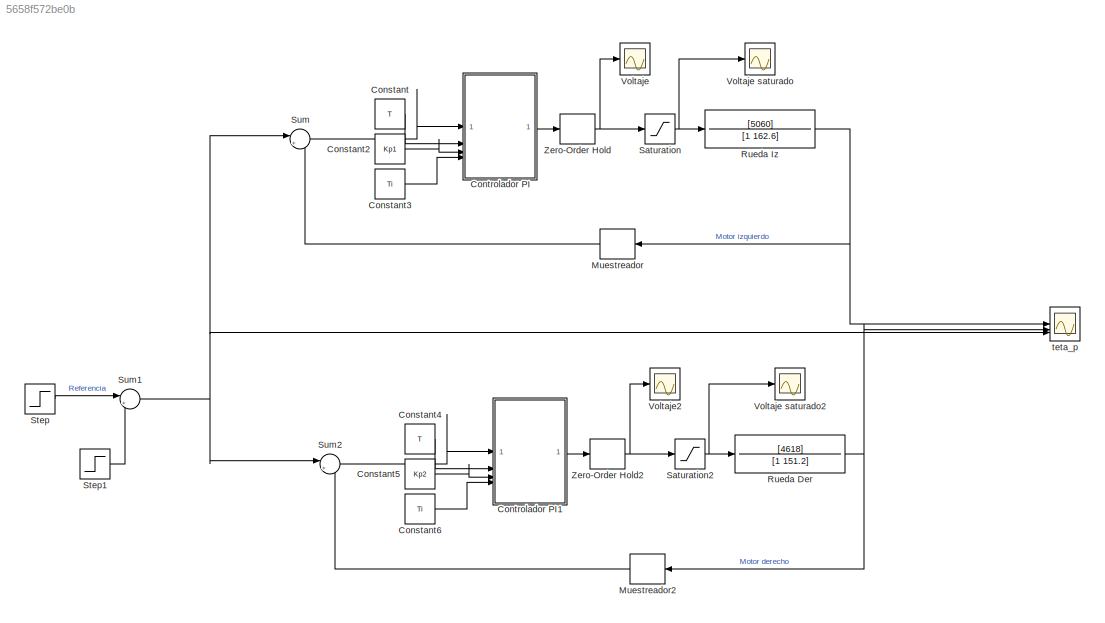
MODEL slx_5658f572be0b
KIND model
CONFIG AbsTol = auto
CONFIG EnableMultiTasking = off
CONFIG FixedStep = auto
CONFIG MaxStep = auto
CONFIG MinStep = auto
CONFIG RelTol = 1e-3
CONFIG SampleTimeConstraint = Unconstrained
CONFIG SolverName = VariableStepAuto
CONFIG StartTime = 0.0
CONFIG StopTime = 5
BLOCK [Constant] Constant
  Value = T
BLOCK [Constant] Constant2
  Value = Kp1
BLOCK [Constant] Constant3
  Value = Ti
BLOCK [Constant] Constant4
  Value = T
BLOCK [Constant] Constant5
  Value = Kp2
BLOCK [Constant] Constant6
  Value = Ti
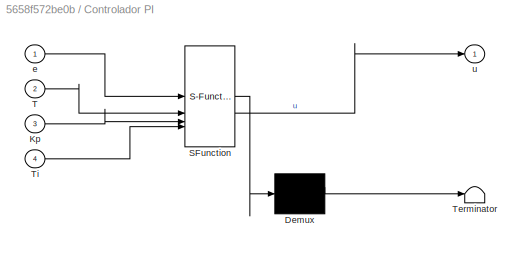
BLOCK [SubSystem] Controlador PI
  ErrorFcn = Stateflow.Translate.translate
  PermitHierarchicalResolution = ExplicitOnly
  SFBlockType = MATLAB Function
  SystemSampleTime = T
  TreatAsAtomicUnit = on
BLOCK [Demux] Controlador PI/ Demux 
  Outputs = 1
BLOCK [S-Function] Controlador PI/ SFunction 
  EnableBusSupport = on
  FunctionName = sf_sfun
  PortCounts = [4 2]
  SFcnIsStateOwnerBlock = off
  SFunctionDeploymentMode = off
  Tag = Stateflow S-Function 2
BLOCK [Terminator] Controlador PI/ Terminator 
BLOCK [Inport] Controlador PI/Kp
  Port = 3
BLOCK [Inport] Controlador PI/T
  Port = 2
BLOCK [Inport] Controlador PI/Ti
  Port = 4
BLOCK [Inport] Controlador PI/e
BLOCK [Outport] Controlador PI/u
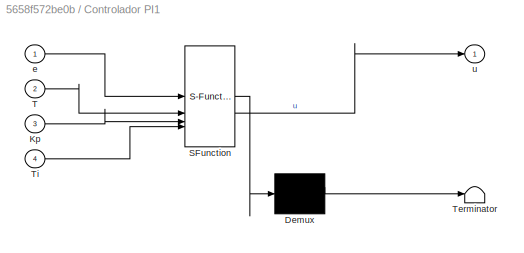
BLOCK [SubSystem] Controlador PI1
  ErrorFcn = Stateflow.Translate.translate
  PermitHierarchicalResolution = ExplicitOnly
  SFBlockType = MATLAB Function
  SystemSampleTime = T
  TreatAsAtomicUnit = on
BLOCK [Demux] Controlador PI1/ Demux 
  Outputs = 1
BLOCK [S-Function] Controlador PI1/ SFunction 
  EnableBusSupport = on
  FunctionName = sf_sfun
  PortCounts = [4 2]
  SFcnIsStateOwnerBlock = off
  SFunctionDeploymentMode = off
  Tag = Stateflow S-Function 3
BLOCK [Terminator] Controlador PI1/ Terminator 
BLOCK [Inport] Controlador PI1/Kp
  Port = 3
BLOCK [Inport] Controlador PI1/T
  Port = 2
BLOCK [Inport] Controlador PI1/Ti
  Port = 4
BLOCK [Inport] Controlador PI1/e
BLOCK [Outport] Controlador PI1/u
BLOCK [ZeroOrderHold] Muestreador
  SampleTime = T
BLOCK [ZeroOrderHold] Muestreador2
  SampleTime = T
BLOCK [TransferFcn] Rueda Der
  Denominator = [1 151.2]
  Numerator = [4618]
BLOCK [TransferFcn] Rueda Iz
  Denominator = [1 162.6]
  Numerator = [5060]
BLOCK [Saturate] Saturation
  LowerLimit = -9
  UpperLimit = 9
BLOCK [Saturate] Saturation2
  LowerLimit = -9
  UpperLimit = 9
BLOCK [Step] Step
  After = 275
  SampleTime = 0
  Time = 0
BLOCK [Step] Step1
  After = 275
  Commented = on
  SampleTime = 0
  Time = 5
BLOCK [Sum] Sum
  Inputs = |+-
BLOCK [Sum] Sum1
  Inputs = |+-
BLOCK [Sum] Sum2
  Inputs = |+-
BLOCK [Scope] Voltaje
  Floating = off
  NumInputPorts = 1
  ScopeSpecificationString = Simulink.scopes.TimeScopeBlockCfg('CurrentConfiguration', extmgr.ConfigurationSet(extmgr.Configuration('Core','General UI',true),extmgr.Configuration('Core','Source UI',true),extmgr.Configuration('Sources','WiredSimulink',true,'DataLoggingVariableName','ScopeData1'),extmgr.Configuration('Visuals','Time Domain',true,'SerializedDisplays',{struct('MinYLimReal','-0.6487','MaxYLimReal','9.77224','YLabe...<+1625ch>
BLOCK [Scope] Voltaje saturado
  Floating = off
  NumInputPorts = 1
  ScopeSpecificationString = Simulink.scopes.TimeScopeBlockCfg('CurrentConfiguration', extmgr.ConfigurationSet(extmgr.Configuration('Core','General UI',true),extmgr.Configuration('Core','Source UI',true),extmgr.Configuration('Sources','WiredSimulink',true,'DataLoggingVariableName','ScopeData2'),extmgr.Configuration('Visuals','Time Domain',true,'SerializedDisplays',{struct('MinYLimReal','-11.25','MaxYLimReal','11.25','YLabelRe...<+1475ch>
BLOCK [Scope] Voltaje saturado2
  Floating = off
  NumInputPorts = 1
  ScopeSpecificationString = Simulink.scopes.TimeScopeBlockCfg('CurrentConfiguration', extmgr.ConfigurationSet(extmgr.Configuration('Core','General UI',true),extmgr.Configuration('Core','Source UI',true),extmgr.Configuration('Sources','WiredSimulink',true,'DataLoggingVariableName','ScopeData1'),extmgr.Configuration('Visuals','Time Domain',true,'SerializedDisplays',{struct('MinYLimReal','2.67548','MaxYLimReal','9.70272','YLabe...<+1512ch>
BLOCK [Scope] Voltaje2
  Floating = off
  NumInputPorts = 1
  ScopeSpecificationString = Simulink.scopes.TimeScopeBlockCfg('CurrentConfiguration', extmgr.ConfigurationSet(extmgr.Configuration('Core','General UI',true),extmgr.Configuration('Core','Source UI',true),extmgr.Configuration('Sources','WiredSimulink',true,'DataLoggingVariableName','ScopeData2'),extmgr.Configuration('Visuals','Time Domain',true,'SerializedDisplays',{struct('MinYLimReal','2.66362','MaxYLimReal','9.80947','YLabe...<+1537ch>
BLOCK [ZeroOrderHold] Zero-Order Hold
  SampleTime = T
BLOCK [ZeroOrderHold] Zero-Order Hold2
  SampleTime = T
BLOCK [Scope] teta_p
  Floating = off
  NumInputPorts = 3
  ScopeSpecificationString = Simulink.scopes.TimeScopeBlockCfg('CurrentConfiguration', extmgr.ConfigurationSet(extmgr.Configuration('Core','General UI',true,'FigureColor',[1 1 1]),extmgr.Configuration('Core','Source UI',true),extmgr.Configuration('Sources','WiredSimulink',true),extmgr.Configuration('Visuals','Time Domain',true,'SerializedDisplays',{struct('MinYLimReal','-34.03821','MaxYLimReal','306.34391','YLabelReal','Veloc...<+2091ch>
LINE Constant2:1 -> Controlador PI:3
LINE Constant3:1 -> Controlador PI:4
LINE Constant4:1 -> Controlador PI1:2
LINE Constant5:1 -> Controlador PI1:3
LINE Constant6:1 -> Controlador PI1:4
LINE Constant:1 -> Controlador PI:2
LINE Controlador PI1:1 -> Zero-Order Hold2:1
LINE Controlador PI:1 -> Zero-Order Hold:1
LINE Muestreador2:1 -> Sum2:2
LINE Muestreador:1 -> Sum:2
NET Rueda Der:1 -> Muestreador2:1, teta_p:2
NET Rueda Iz:1 -> Muestreador:1, teta_p:1
NET Saturation2:1 -> Rueda Der:1, Voltaje saturado2:1
NET Saturation:1 -> Rueda Iz:1, Voltaje saturado:1
LINE Step1:1 -> Sum1:2
LINE Step:1 -> Sum1:1
NET Sum1:1 -> Sum2:1, Sum:1, teta_p:3
LINE Sum2:1 -> Controlador PI1:1
LINE Sum:1 -> Controlador PI:1
NET Zero-Order Hold2:1 -> Saturation2:1, Voltaje2:1
NET Zero-Order Hold:1 -> Saturation:1, Voltaje:1
note: NET lines group one-source signal fan-out (src -> all destinations, sorted); 1:1 wires keep LINE
CHART Controlador PI states=1 transitions=1
  STATE_LABEL 'eML_blk_kernel()'
  STATE_LABEL 'SCRIPT:\nfunction u = fcn(e,T, Kp, Ti)\n\npersistent I_ant;\n\nif isempty(I_ant),\n    I_ant=0;\nend;\n\nI = I_ant + e*T;\n\nu = Kp*(e + (1/Ti)*I);\n\nI_ant = I;'
CHART Controlador PI1 states=1 transitions=1
  STATE_LABEL 'eML_blk_kernel()'
  STATE_LABEL 'SCRIPT:\nfunction u = fcn(e,T, Kp, Ti)\n\npersistent I_ant;\n\nif isempty(I_ant),\n    I_ant=0;\nend;\n\nI = I_ant + e*T;\n\nu = Kp*(e + (1/Ti)*I);\n\nI_ant = I;'
CHART  states=0 transitions=0
CHART  states=0 transitions=0
